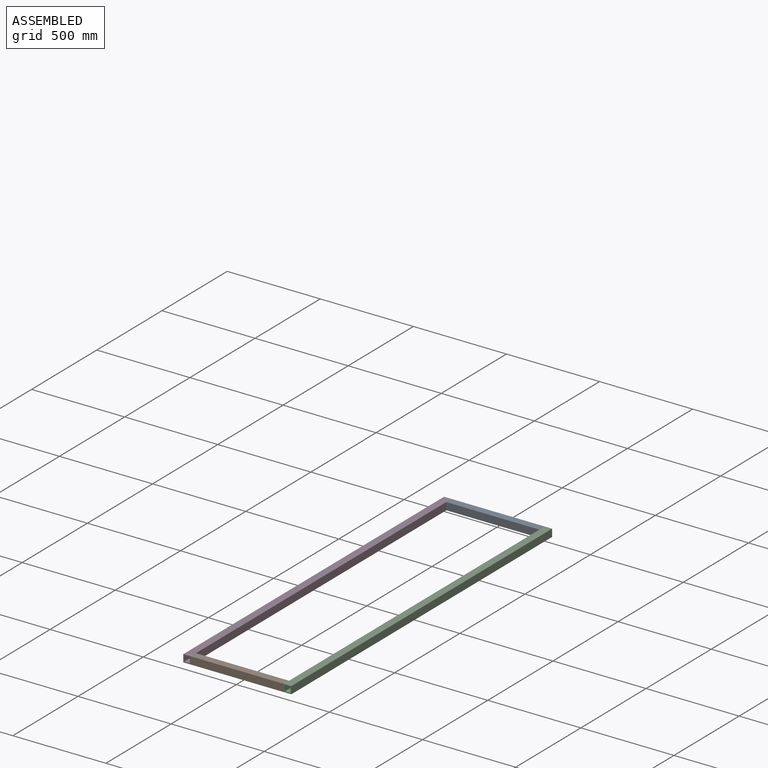
[diagram: assembled view]
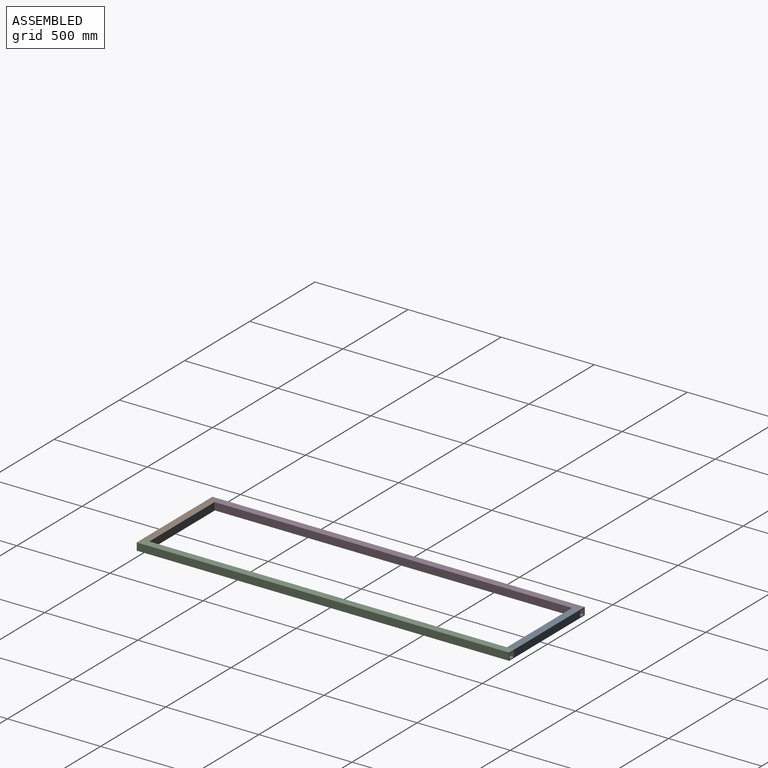
[diagram: assembled view, second angle]
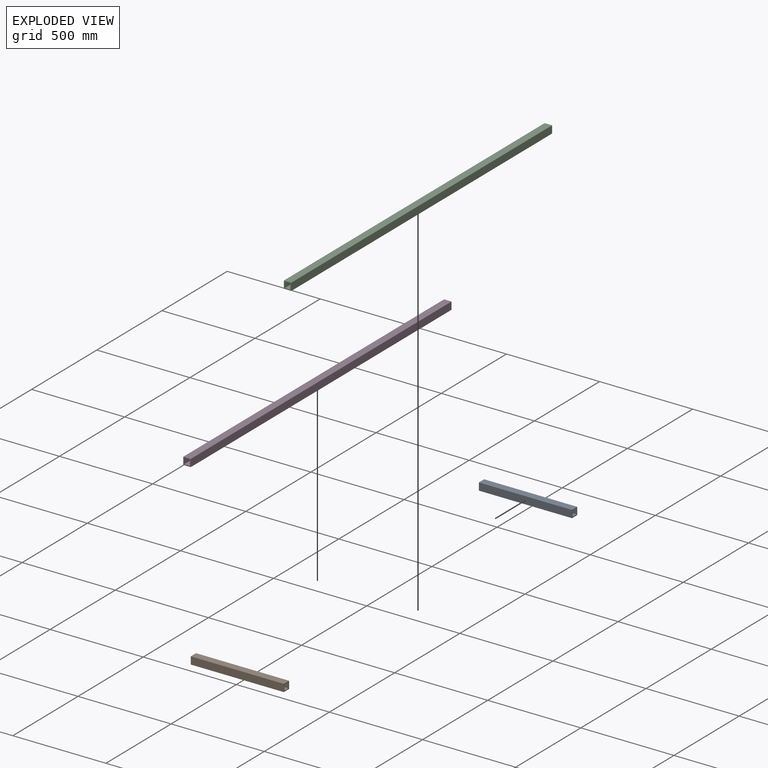
[diagram: exploded view]
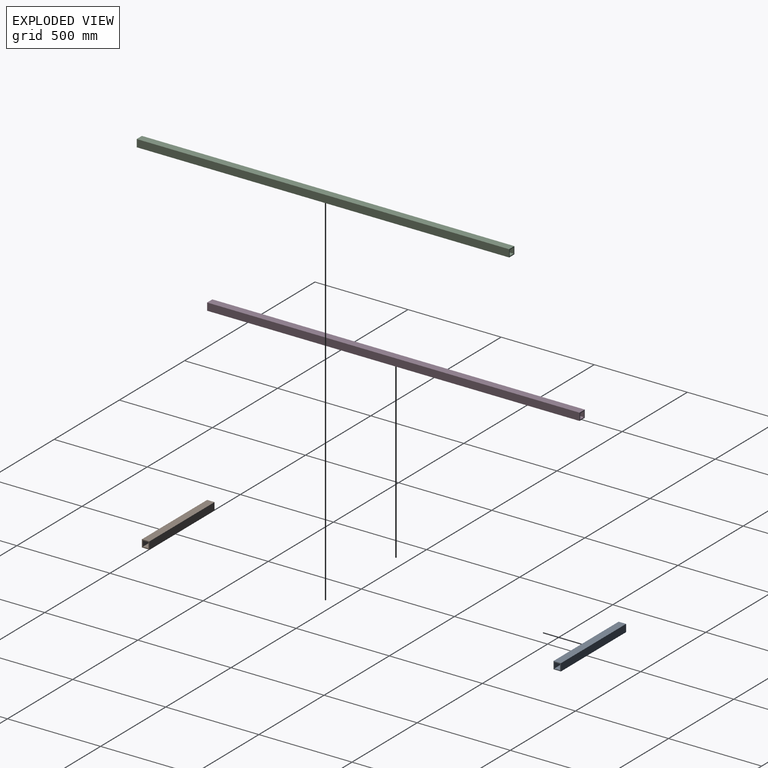
[diagram: exploded view, second angle]
ASSEMBLY  parts=4 mates=9
PART A: 10 faces, bbox 40x500x40 mm
  f0: plane 500x30mm, normal (0,0,-1), area 15000mm2, adj f1,f7,f8,f9
  f1: plane 500x30mm, normal (-1,0,0), area 15000mm2, adj f0,f2,f8,f9
  f2: plane 500x30mm, normal (0,0,1), area 15000mm2, adj f1,f7,f8,f9
  f3: plane 500x40mm, normal (1,0,0), area 20000mm2, adj f4,f6,f8,f9
  f4: plane 500x40mm, normal (0,0,1), area 20000mm2, adj f3,f5,f8,f9
  f5: plane 500x40mm, normal (-1,0,0), area 20000mm2, adj f4,f6,f8,f9
  f6: plane 500x40mm, normal (0,0,-1), area 20000mm2, adj f3,f5,f8,f9
  f7: plane 500x30mm, normal (1,0,0), area 15000mm2, adj f0,f2,f8,f9
  f8: plane 40x40mm, normal (0,1,0), area 700mm2, adj f0,f1,f2,f3,f4,f5,f6,f7
  f9: plane 40x40mm, normal (0,-1,0), area 700mm2, adj f0,f1,f2,f3,f4,f5,f6,f7
PART B: same geometry as A
PART C: 10 faces, bbox 40x2000x40 mm
  f0: plane 2000x30mm, normal (0,0,-1), area 60000mm2, adj f1,f7,f8,f9
  f1: plane 2000x30mm, normal (-1,0,0), area 60000mm2, adj f0,f2,f8,f9
  f2: plane 2000x30mm, normal (0,0,1), area 60000mm2, adj f1,f7,f8,f9
  f3: plane 2000x40mm, normal (1,0,0), area 80000mm2, adj f4,f6,f8,f9
  f4: plane 2000x40mm, normal (0,0,1), area 80000mm2, adj f3,f5,f8,f9
  f5: plane 2000x40mm, normal (-1,0,0), area 80000mm2, adj f4,f6,f8,f9
  f6: plane 2000x40mm, normal (0,0,-1), area 80000mm2, adj f3,f5,f8,f9
  f7: plane 2000x30mm, normal (1,0,0), area 60000mm2, adj f0,f2,f8,f9
  f8: plane 40x40mm, normal (0,1,0), area 700mm2, adj f0,f1,f2,f3,f4,f5,f6,f7
  f9: plane 40x40mm, normal (0,-1,0), area 700mm2, adj f0,f1,f2,f3,f4,f5,f6,f7
PART D: same geometry as C
PLACE A rot(axis=(-0.58,0.58,0.58),120deg) t=(255.14,1980.45,-4.08)mm
PLACE B rot(axis=(0.58,0.58,-0.58),120deg) t=(-244.86,20.45,-4.08)mm
PLACE C t=(275.14,0.45,-4.08)mm
PLACE D t=(-264.86,0.45,-4.08)mm
MATE planar A.f4 <-> D.f8  axis (0,1,0) through (5.14,2000.45,-4.08)mm
MATE planar A.f5 <-> D.f4  axis (0,0,1) through (5.14,1980.45,15.92)mm
MATE planar B.f5 <-> D.f4  axis (0,0,1) through (5.14,20.45,15.92)mm
MATE planar B.f5 <-> C.f4  axis (0,0,1) through (255.14,40.45,15.92)mm
MATE planar A.f8 <-> D.f3  axis (-1,0,0) through (-244.86,1980.45,-4.08)mm
MATE planar B.f4 <-> D.f9  axis (0,-1,0) through (5.14,0.45,-4.08)mm
MATE planar B.f4 <-> C.f9  axis (0,-1,0) through (255.14,0.45,-24.08)mm
MATE planar B.f8 <-> C.f5  axis (1,0,0) through (255.14,20.45,-4.08)mm
MATE planar B.f9 <-> D.f3  axis (-1,0,0) through (-244.86,5.45,10.92)mm
